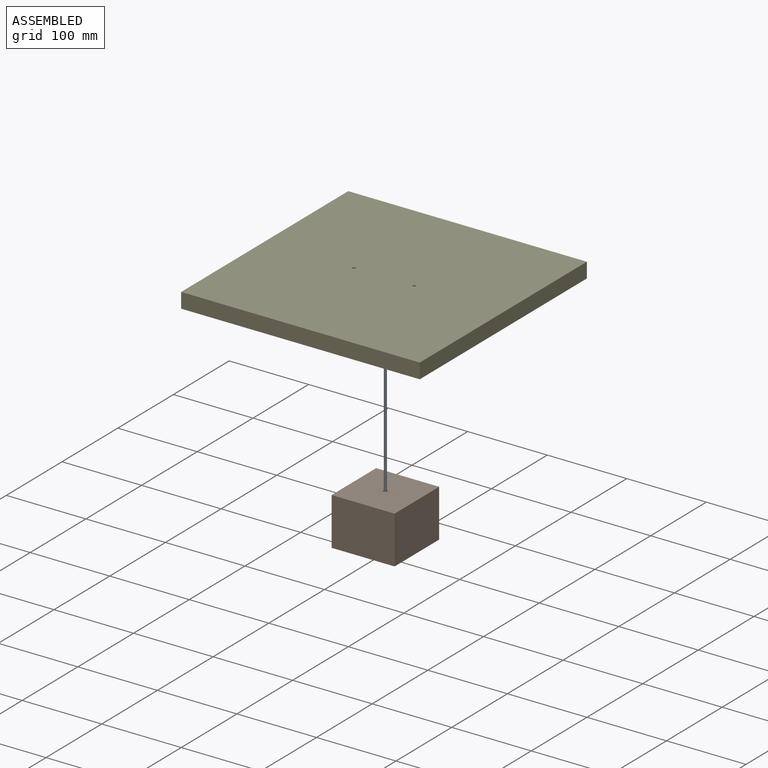
[diagram: assembled view]
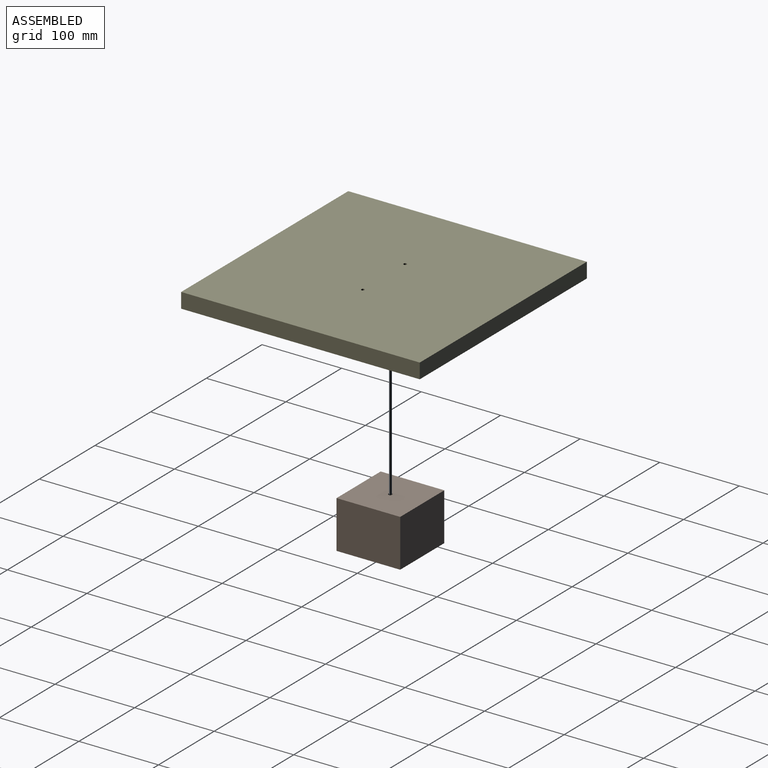
[diagram: assembled view, second angle]
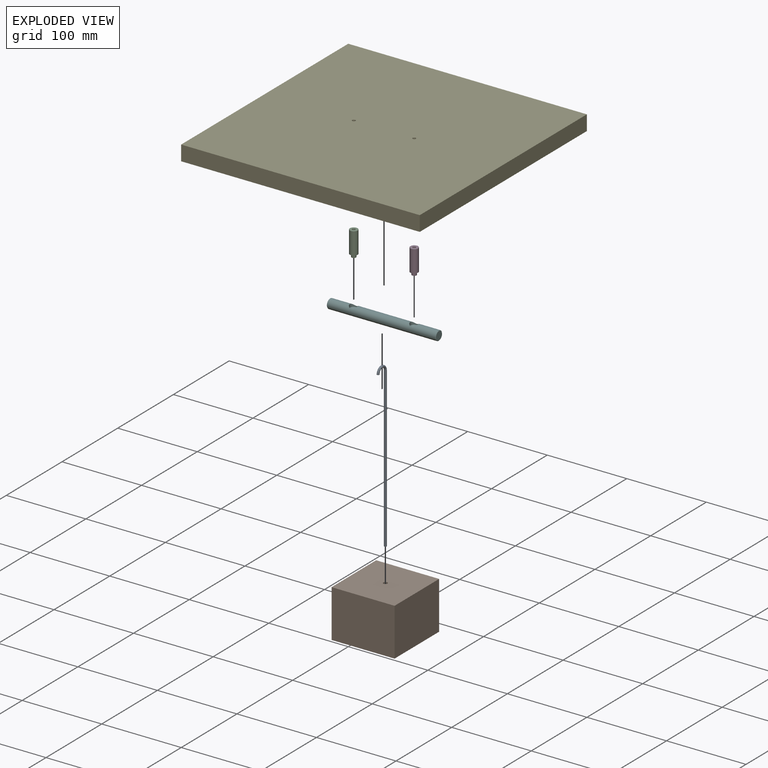
[diagram: exploded view]
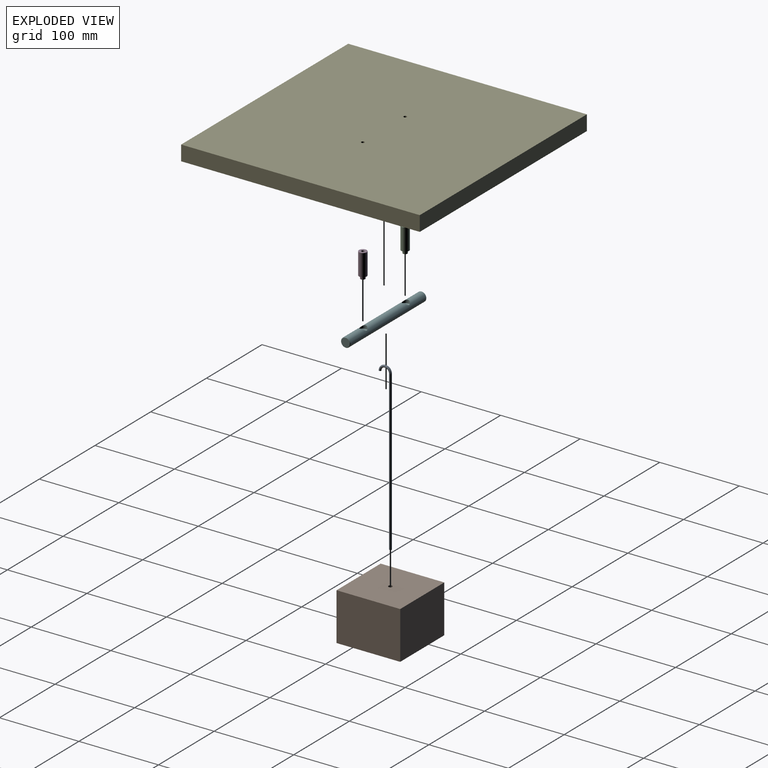
[diagram: exploded view, second angle]
ASSEMBLY  parts=6 mates=7
PART A: 4 faces, bbox 19x209.6x3 mm
  f0: plane 3x3mm, normal (0,-1,0), area 7.1mm2, adj f2
  f1: plane 3x3mm, normal (0,-1,0), area 7.1mm2, adj f3
  f2: bspline ~19x10.23mm, area 195.3mm2, adj f0,f3
  f3: cylinder r=1.5mm len=199.72mm, axis (0,1,0), area 1881.9mm2, adj f1,f2
PART B: 8 faces, bbox 79.2x80x60 mm
  f0: plane 80x60mm, normal (-1,0,0), area 4800mm2, adj f1,f3,f4,f5
  f1: plane 79.2x60mm, normal (0,-1,0), area 4752.1mm2, adj f0,f2,f4,f5
  f2: plane 80x60mm, normal (1,0,0), area 4800mm2, adj f1,f3,f4,f5
  f3: plane 79.2x60mm, normal (0,1,0), area 4752.1mm2, adj f0,f2,f4,f5
  f4: plane 80x79.2mm, normal (0,0,1), area 6316.5mm2, adj f0,f1,f2,f3,f6
  f5: plane 80x79.2mm, normal (0,0,-1), area 6336.1mm2, adj f0,f1,f2,f3
  f6: cylinder r=2.5mm len=10mm, axis (0,0,1), area 157.1mm2, adj f4,f7
  f7: plane 5x5mm, normal (0,0,1), area 19.6mm2, adj f6
PART C: 7 faces, bbox 9.8x9.8x31.2 mm
  f0: cylinder r=4.89mm len=27.54mm, axis (0,0,-1), area 846.2mm2, adj f1,f2
  f1: plane 9.78x9.78mm, normal (0,0,1), area 49.6mm2, adj f0,f3
  f2: plane 9.78x9.78mm, normal (0,0,-1), area 62.9mm2, adj f0,f5
  f3: cylinder r=2.85mm len=5.7mm, axis (0,0,-1), area 66.3mm2, adj f1,f4
  f4: plane 5.7x5.7mm, normal (0,0,1), area 25.5mm2, adj f3
  f5: cylinder r=1.97mm len=14.5mm, axis (0,0,-1), area 179.5mm2, adj f2,f6
  f6: plane 3.94x3.94mm, normal (0,0,-1), area 12.2mm2, adj f5
PART D: 7 faces, bbox 9.8x9.8x31.1 mm
  f0: cylinder r=4.89mm len=27.5mm, axis (0,0,-1), area 844.9mm2, adj f1,f2
  f1: plane 9.78x9.78mm, normal (0,0,1), area 48.7mm2, adj f0,f3
  f2: plane 9.78x9.78mm, normal (0,0,-1), area 63.9mm2, adj f0,f5
  f3: cylinder r=2.9mm len=5.8mm, axis (0,0,-1), area 66mm2, adj f1,f4
  f4: plane 5.8x5.8mm, normal (0,0,1), area 26.4mm2, adj f3
  f5: cylinder r=1.89mm len=13.5mm, axis (0,0,-1), area 160.3mm2, adj f2,f6
  f6: plane 3.78x3.78mm, normal (0,0,-1), area 11.2mm2, adj f5
PART E: 8 faces, bbox 300x300x19 mm
  f0: plane 300x19mm, normal (-1,0,0), area 5700mm2, adj f1,f3,f4,f5
  f1: plane 300x19mm, normal (0,-1,0), area 5700mm2, adj f0,f2,f4,f5
  f2: plane 300x19mm, normal (1,0,0), area 5700mm2, adj f1,f3,f4,f5
  f3: plane 300x19mm, normal (0,1,0), area 5700mm2, adj f0,f2,f4,f5
  f4: plane 300x300mm, normal (0,0,1), area 89974.9mm2, adj f0,f1,f2,f3,f6,f7
  f5: plane 300x300mm, normal (0,0,-1), area 89974.9mm2, adj f0,f1,f2,f3,f6,f7
  f6: cylinder r=2mm len=19mm, axis (0,0,1), area 238.8mm2, adj f4,f5
  f7: cylinder r=2mm len=19mm, axis (0,0,1), area 238.8mm2, adj f4,f5
PART F: 15 faces, bbox 11.9x11.9x137.1 mm
  f0: cylinder r=5.93mm len=136.14mm, axis (0,0,-1), area 4895.1mm2, adj f3,f5,f11,f12
  f1: plane 10.86x10.86mm, normal (0,0,1), area 92.6mm2, adj f12
  f2: plane 10.86x10.86mm, normal (0,0,-1), area 92.6mm2, adj f11
  f3: cylinder r=5mm len=10mm, axis (0,-1,0), area 89mm2, adj f0,f4
  f4: plane 10x10mm, normal (0,-1,0), area 4.6mm2, adj f3,f14
  f5: cylinder r=5mm len=10mm, axis (0,-1,0), area 89mm2, adj f0,f6
  f6: plane 10x10mm, normal (0,-1,0), area 4.6mm2, adj f5,f13
  f7: cylinder r=2.65mm len=5.3mm, axis (0,-1,0), area 58.3mm2, adj f8,f13
  f8: plane 5.3x5.3mm, normal (0,-1,0), area 22.1mm2, adj f7
  f9: cylinder r=2.65mm len=5.3mm, axis (0,-1,0), area 58.3mm2, adj f10,f14
  f10: plane 5.3x5.3mm, normal (0,-1,0), area 22.1mm2, adj f9
  f11: cone r=5.93mm half-angle=45deg, axis (0,0,1), area 25.2mm2, adj f0,f2
  f12: cone r=5.43mm half-angle=45deg, axis (0,0,-1), area 25.2mm2, adj f0,f1
  f13: cone r=2.65mm half-angle=45deg, axis (0,-1,0), area 73.3mm2, adj f6,f7
  f14: cone r=2.65mm half-angle=45deg, axis (0,-1,0), area 73.3mm2, adj f4,f9
PLACE A rot(axis=(0.58,0.58,0.58),120deg) t=(125.82,29.69,-7.12)mm
PLACE B t=(86.22,-10.31,-67.12)mm
PLACE C rot(axis=(-0.71,0.71,0),180deg) t=(90.46,23.45,220.2)mm
PLACE D rot(axis=(-0.71,0.71,0),180deg) t=(166.46,23.45,220.16)mm
PLACE E t=(-21.54,-126.55,220.2)mm
PLACE F rot(axis=(-0.58,0.58,-0.58),120deg) t=(60.46,23.45,190.83)mm
MATE fastened B.f6 <-> A.f3  axis (0,0,1) through (125.82,29.69,-7.12)mm
MATE fastened E.f7 <-> C.f0  axis (0,0,-1) through (90.46,23.45,220.2)mm
MATE fastened D.f3 <-> F.f9  axis (0,0,-1) through (166.46,23.45,192.66)mm
MATE slider C.f3 <-> F.f5  axis (0,0,-1) through (90.46,23.45,192.66)mm
MATE fastened C.f0 <-> F.f7  axis (0,0,-1) through (90.46,23.45,192.66)mm
MATE slider D.f3 <-> F.f9  axis (0,0,-1) through (166.46,23.45,189.04)mm
MATE slider E.f7 <-> C.f5  axis (0,0,-1) through (90.46,23.45,220.2)mm
